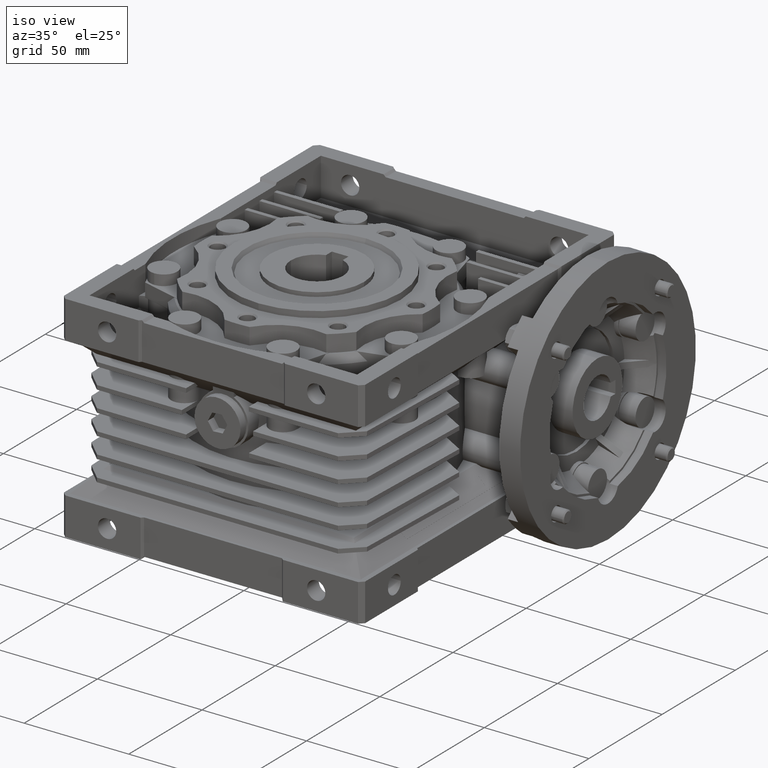
[diagram: clean part render]
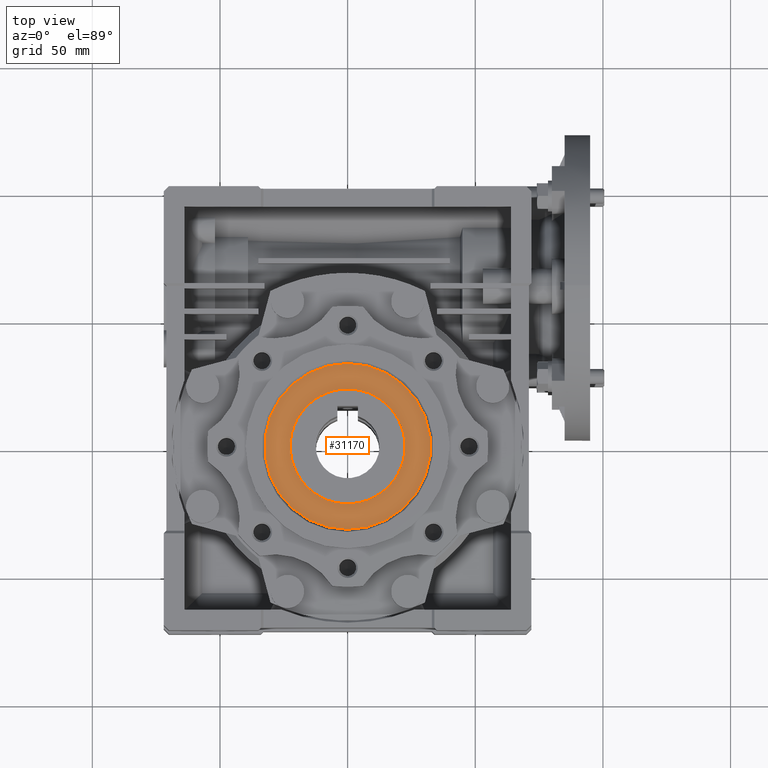
[diagram: tour spotlight — one face highlighted and labeled with its STEP entity id]
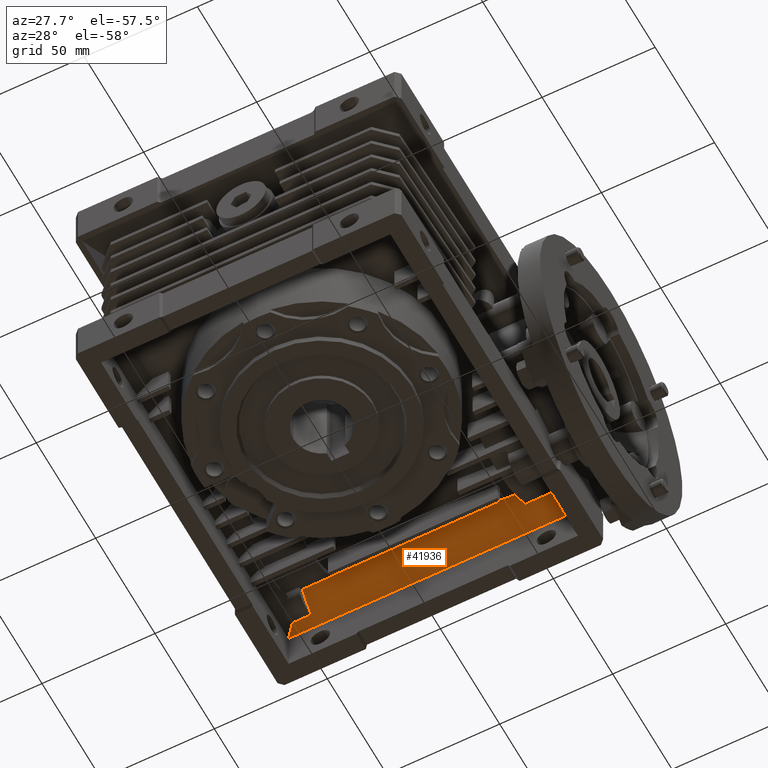
[diagram: tour spotlight — one face highlighted and labeled with its STEP entity id]
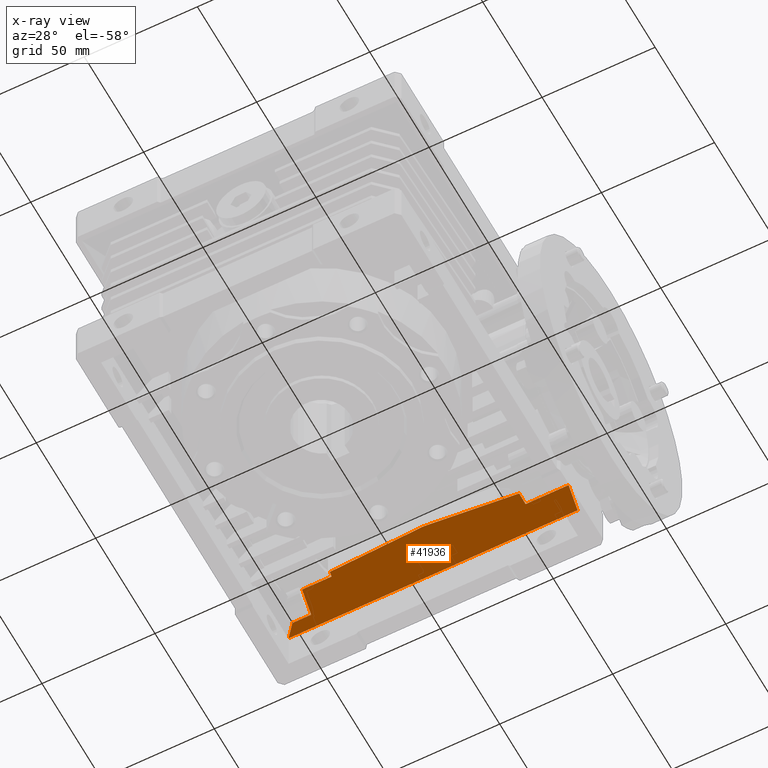
[diagram: x-ray of the same camera — body ghosted, this tour face saturated]
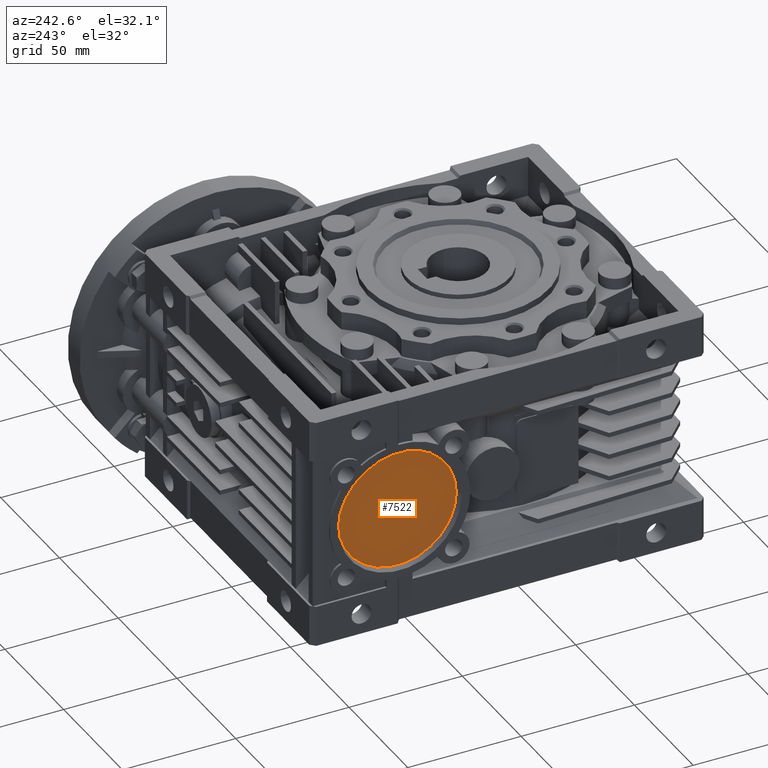
[diagram: tour spotlight — one face highlighted and labeled with its STEP entity id]
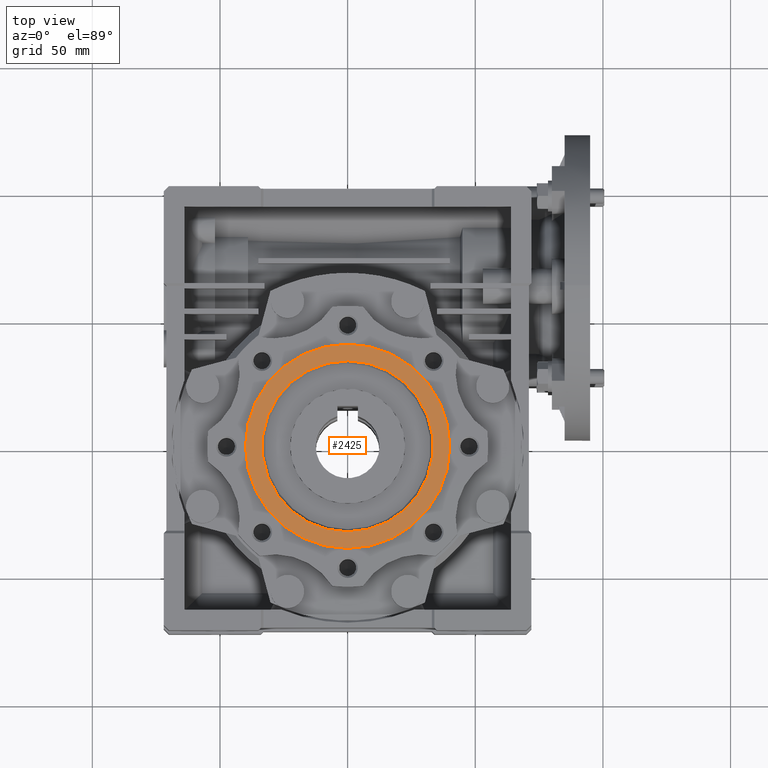
[diagram: tour spotlight — one face highlighted and labeled with its STEP entity id]
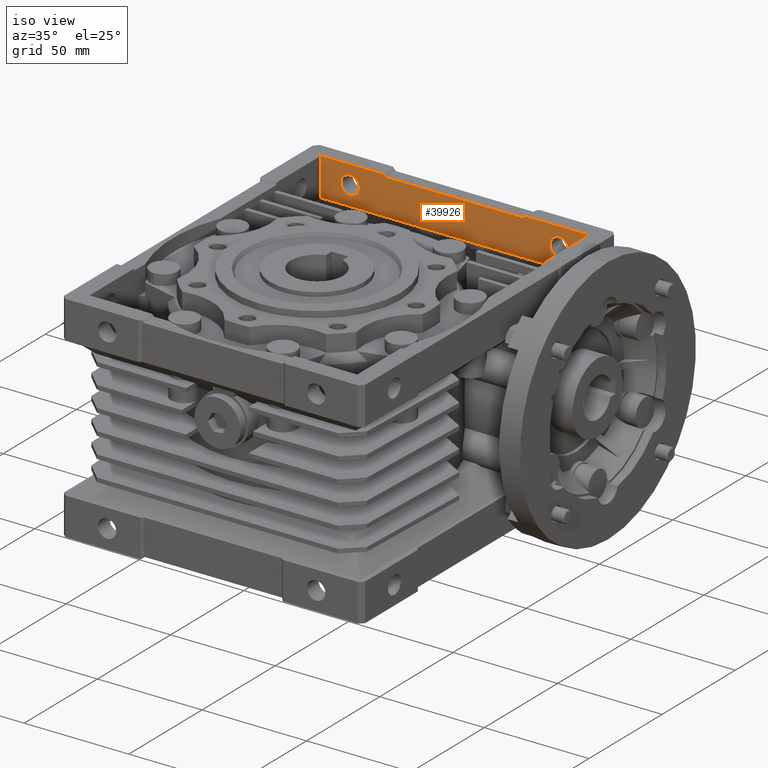
[diagram: tour spotlight — one face highlighted and labeled with its STEP entity id]
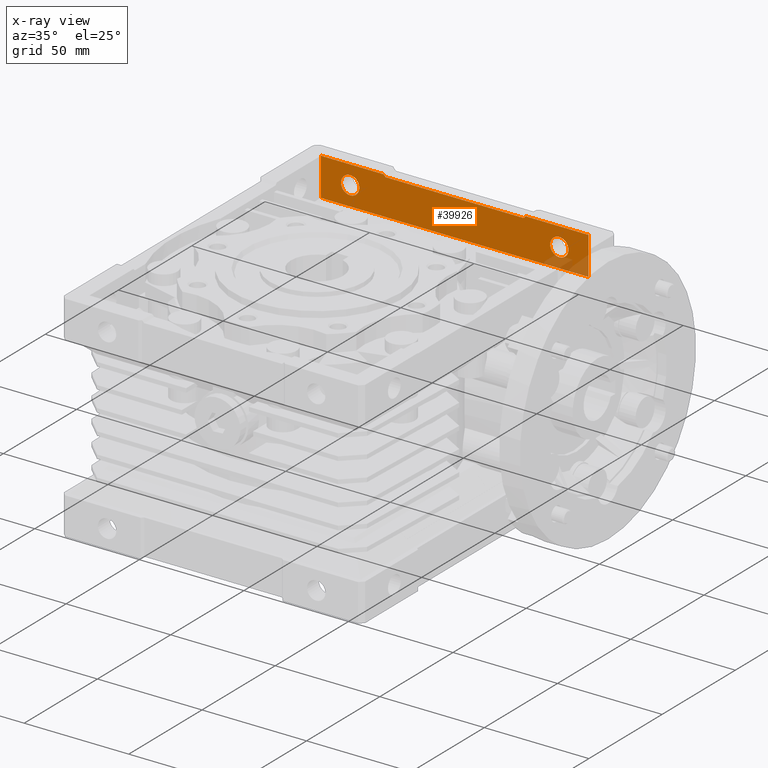
[diagram: x-ray of the same camera — body ghosted, this tour face saturated]
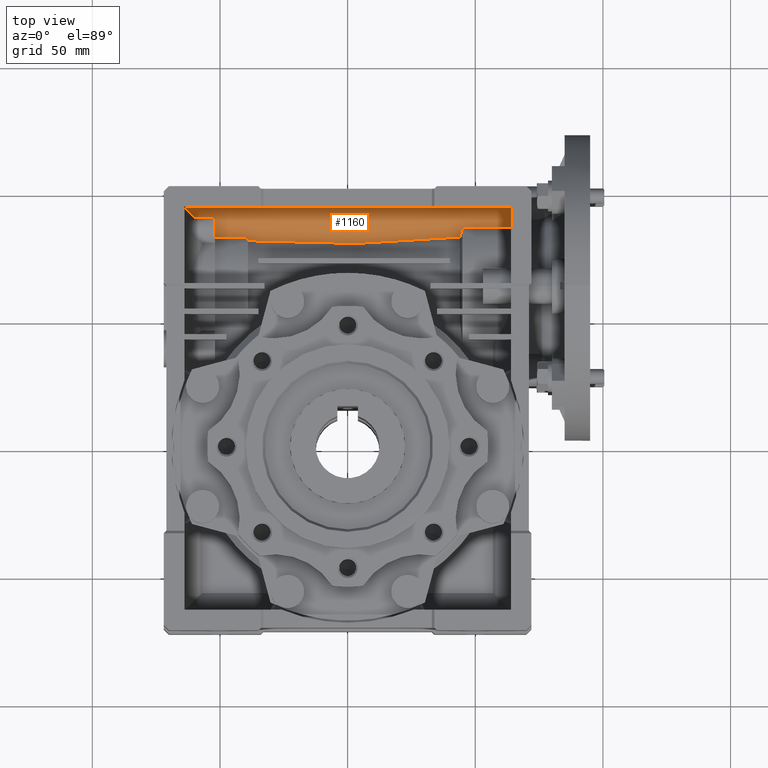
[diagram: tour spotlight — one face highlighted and labeled with its STEP entity id]
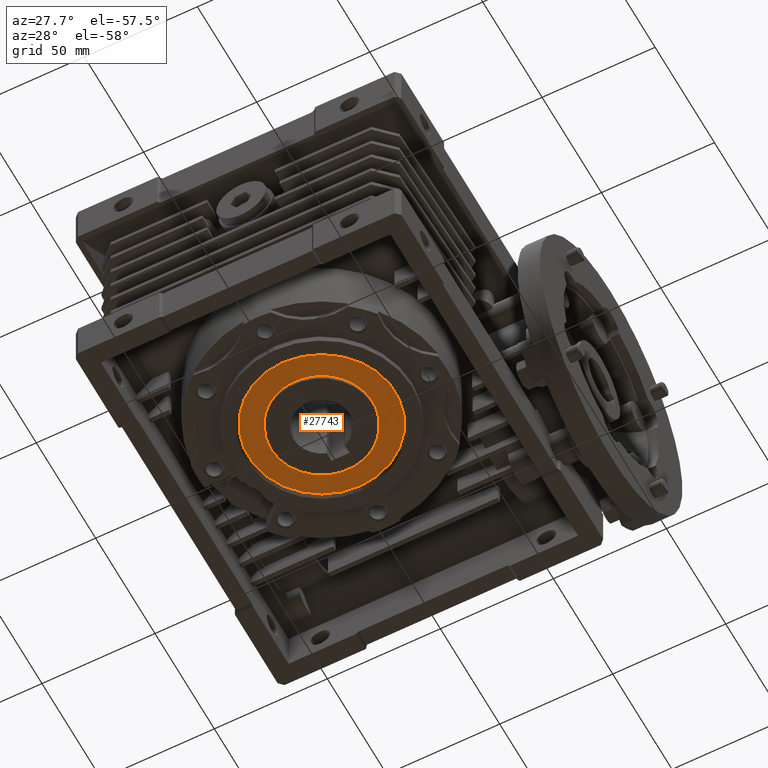
[diagram: tour spotlight — one face highlighted and labeled with its STEP entity id]
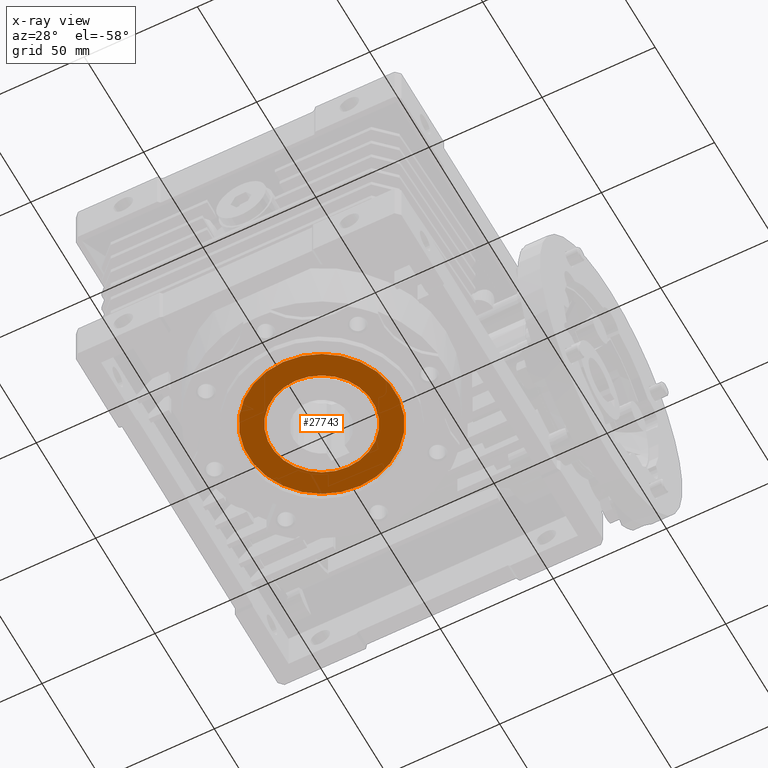
[diagram: x-ray of the same camera — body ghosted, this tour face saturated]
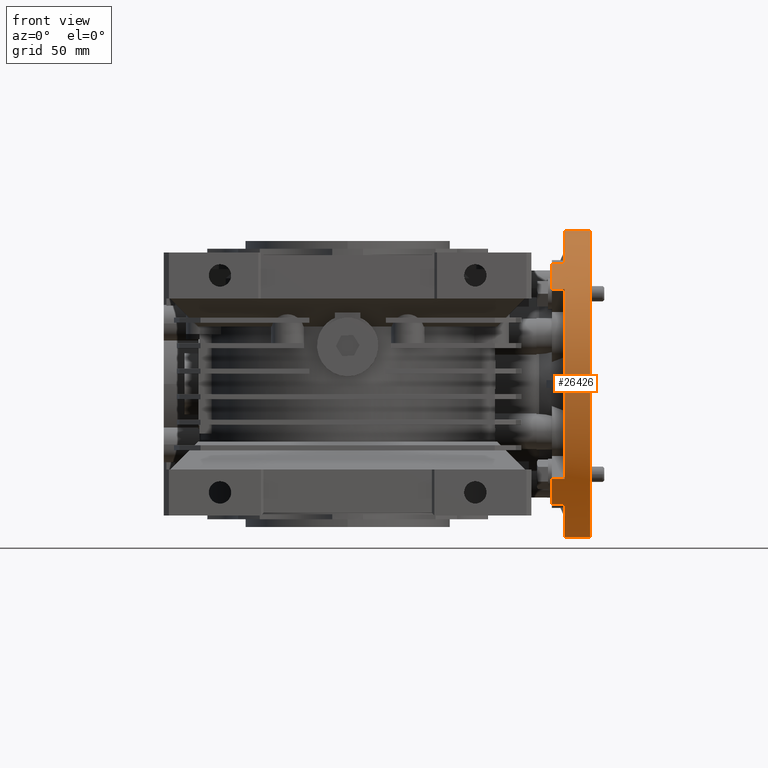
[diagram: tour spotlight — one face highlighted and labeled with its STEP entity id]
A machine part: a face-by-face anatomy tour. The part has 1442 B-rep faces; the first image is the clean iso view, then the 8 largest visible faces are spotlighted one at a time (largest first), each with its STEP entity span.

Face 1 — top view, entity #31170. In plain terms, the highlighted planar face has unit normal (0, 0, 1).
Definition (entity closure, byte-faithful):
#1278 = DIRECTION ( 'NONE',  ( 0.000000000000000000, 0.000000000000000000, 1.000000000000000000 ) ) ;
#1339 = DIRECTION ( 'NONE',  ( 1.000000000000000000, 0.000000000000000000, 0.000000000000000000 ) ) ;
#1346 = CIRCLE ( 'NONE', #11056, 22.50000000000000000 ) ;
#1514 = EDGE_CURVE ( 'NONE', #43814, #25151, #44225, .T. ) ;
#2572 = AXIS2_PLACEMENT_3D ( 'NONE', #26921, #16107, #1339 ) ;
#4056 = CARTESIAN_POINT ( 'NONE',  ( 0.000000000000000000, 22.50000000000000000, 54.00000000000000000 ) ) ;
#4643 = CARTESIAN_POINT ( 'NONE',  ( 0.000000000000000000, 0.000000000000000000, 54.00000000000000000 ) ) ;
#8295 = VERTEX_POINT ( 'NONE', #12940 ) ;
#9101 = CARTESIAN_POINT ( 'NONE',  ( -4.041334437186266200E-15, -32.50000000000000000, 54.00000000000000000 ) ) ;
#9655 = EDGE_LOOP ( 'NONE', ( #42386, #29080 ) ) ;
#11056 = AXIS2_PLACEMENT_3D ( 'NONE', #15392, #30198, #18922 ) ;
#12794 = PLANE ( 'NONE',  #2572 ) ;
#12940 = CARTESIAN_POINT ( 'NONE',  ( -2.755455298081544778E-15, -22.50000000000000000, 54.00000000000000000 ) ) ;
#14831 = CARTESIAN_POINT ( 'NONE',  ( 0.000000000000000000, 32.50000000000000000, 54.00000000000000000 ) ) ;
#15392 = CARTESIAN_POINT ( 'NONE',  ( 0.000000000000000000, 0.000000000000000000, 54.00000000000000000 ) ) ;
#16107 = DIRECTION ( 'NONE',  ( 0.000000000000000000, 0.000000000000000000, 1.000000000000000000 ) ) ;
#16496 = AXIS2_PLACEMENT_3D ( 'NONE', #43987, #1278, #26607 ) ;
#17950 = ORIENTED_EDGE ( 'NONE', *, *, #45183, .T. ) ;
#18922 = DIRECTION ( 'NONE',  ( 0.000000000000000000, 1.000000000000000000, 0.000000000000000000 ) ) ;
#19035 = EDGE_CURVE ( 'NONE', #8295, #24303, #36298, .T. ) ;
#20578 = EDGE_CURVE ( 'NONE', #25151, #43814, #40146, .T. ) ;
#23400 = FACE_OUTER_BOUND ( 'NONE', #9655, .T. ) ;
#24303 = VERTEX_POINT ( 'NONE', #4056 ) ;
#25028 = DIRECTION ( 'NONE',  ( 0.000000000000000000, 1.000000000000000000, 0.000000000000000000 ) ) ;
#25151 = VERTEX_POINT ( 'NONE', #14831 ) ;
#26014 = DIRECTION ( 'NONE',  ( 0.000000000000000000, 0.000000000000000000, 1.000000000000000000 ) ) ;
#26607 = DIRECTION ( 'NONE',  ( 0.000000000000000000, 1.000000000000000000, 0.000000000000000000 ) ) ;
#26921 = CARTESIAN_POINT ( 'NONE',  ( -32.50000000000000000, 0.000000000000000000, 54.00000000000000000 ) ) ;
#27430 = AXIS2_PLACEMENT_3D ( 'NONE', #4643, #26014, #44328 ) ;
#28327 = DIRECTION ( 'NONE',  ( 0.000000000000000000, 0.000000000000000000, -1.000000000000000000 ) ) ;
#29080 = ORIENTED_EDGE ( 'NONE', *, *, #1514, .T. ) ;
#30198 = DIRECTION ( 'NONE',  ( 0.000000000000000000, 0.000000000000000000, -1.000000000000000000 ) ) ;
#31170 = ADVANCED_FACE ( 'NONE', ( #23400, #37254 ), #12794, .T. ) ;
#32227 = ORIENTED_EDGE ( 'NONE', *, *, #19035, .T. ) ;
#36227 = EDGE_LOOP ( 'NONE', ( #17950, #32227 ) ) ;
#36298 = CIRCLE ( 'NONE', #42320, 22.50000000000000000 ) ;
#37254 = FACE_BOUND ( 'NONE', #36227, .T. ) ;
#40146 = CIRCLE ( 'NONE', #27430, 32.50000000000000000 ) ;
#42320 = AXIS2_PLACEMENT_3D ( 'NONE', #42873, #28327, #25028 ) ;
#42386 = ORIENTED_EDGE ( 'NONE', *, *, #20578, .T. ) ;
#42873 = CARTESIAN_POINT ( 'NONE',  ( 0.000000000000000000, 0.000000000000000000, 54.00000000000000000 ) ) ;
#43814 = VERTEX_POINT ( 'NONE', #9101 ) ;
#43987 = CARTESIAN_POINT ( 'NONE',  ( 0.000000000000000000, 0.000000000000000000, 54.00000000000000000 ) ) ;
#44225 = CIRCLE ( 'NONE', #16496, 32.50000000000000000 ) ;
#44328 = DIRECTION ( 'NONE',  ( 0.000000000000000000, 1.000000000000000000, 0.000000000000000000 ) ) ;
#45183 = EDGE_CURVE ( 'NONE', #24303, #8295, #1346, .T. ) ;

Face 2 — auxiliary view, entity #41936. An x-ray twin of the same camera follows (body ghosted, this face saturated) — the face is partly hidden behind the body. In plain terms, the highlighted planar face has unit normal (0, -0.7072, -0.707).
Definition (entity closure, byte-faithful):
#258 = CARTESIAN_POINT ( 'NONE',  ( 64.00000000000000000, 86.11440175275488684, -25.61199780595494957 ) ) ;
#383 = EDGE_LOOP ( 'NONE', ( #20845, #35173, #22791, #42176, #6702, #43087, #4659, #12265, #44978, #31546, #1427 ) ) ;
#1355 = VERTEX_POINT ( 'NONE', #10879 ) ;
#1402 = VERTEX_POINT ( 'NONE', #46130 ) ;
#1427 = ORIENTED_EDGE ( 'NONE', *, *, #16421, .T. ) ;
#1636 = VECTOR ( 'NONE', #31860, 1000.000000000000000 ) ;
#2308 = CARTESIAN_POINT ( 'NONE',  ( -63.87598846298219968, 93.79972079604711155, -33.30000000000000426 ) ) ;
#2548 = CARTESIAN_POINT ( 'NONE',  ( 45.00000000000000000, 86.11440175275488684, -25.61199780595494957 ) ) ;
#3223 = VECTOR ( 'NONE', #44431, 1000.000000000000114 ) ;
#3534 = PLANE ( 'NONE',  #10518 ) ;
#4492 = CARTESIAN_POINT ( 'NONE',  ( -24.91666455388265078, 80.80320074767259086, -20.29894251832494945 ) ) ;
#4659 = ORIENTED_EDGE ( 'NONE', *, *, #44074, .T. ) ;
#5230 = CARTESIAN_POINT ( 'NONE',  ( -60.30301902603810049, 90.22799834309090272, -29.72703056305590152 ) ) ;
#5562 = CARTESIAN_POINT ( 'NONE',  ( 30.44330933938934791, 81.74780550028489756, -21.24387705776054602 ) ) ;
#6433 = VERTEX_POINT ( 'NONE', #11270 ) ;
#6702 = ORIENTED_EDGE ( 'NONE', *, *, #26078, .T. ) ;
#7282 = CARTESIAN_POINT ( 'NONE',  ( -52.00000000000000000, 82.57409283179330828, -22.07045286831105102 ) ) ;
#8149 = CARTESIAN_POINT ( 'NONE',  ( 64.00000000000000000, 60.51134266058539168, 0.000000000000000000 ) ) ;
#8376 = LINE ( 'NONE', #8149, #26756 ) ;
#8599 = CARTESIAN_POINT ( 'NONE',  ( -74.00000000000000000, 93.79972079604711155, -33.30000000000000426 ) ) ;
#10362 = EDGE_CURVE ( 'NONE', #37578, #17298, #8376, .T. ) ;
#10518 = AXIS2_PLACEMENT_3D ( 'NONE', #17856, #28636, #17180 ) ;
#10525 = VECTOR ( 'NONE', #28772, 1000.000000000000000 ) ;
#10879 = CARTESIAN_POINT ( 'NONE',  ( -52.00000000000000000, 90.22799834309090272, -29.72703056305590152 ) ) ;
#11202 = DIRECTION ( 'NONE',  ( 0.000000000000000000, -0.7069833570023729141, 0.7072301838310178779 ) ) ;
#11270 = CARTESIAN_POINT ( 'NONE',  ( -60.30301902603810049, 90.22799834309090272, -29.72703056305590152 ) ) ;
#11279 = CARTESIAN_POINT ( 'NONE',  ( 45.00000000000000000, 86.11440175275488684, -25.61199780595494957 ) ) ;
#12265 = ORIENTED_EDGE ( 'NONE', *, *, #28380, .T. ) ;
#12701 = VECTOR ( 'NONE', #33057, 1000.000000000000000 ) ;
#12744 = CARTESIAN_POINT ( 'NONE',  ( 64.00000000000000000, 93.79972079604711155, -33.30000000000000426 ) ) ;
#13495 = B_SPLINE_CURVE_WITH_KNOTS ( 'NONE', 3,
 ( #2548, #34016, #41284, #40799 ),
 .UNSPECIFIED., .F., .F.,
 ( 4, 4 ),
 ( 3.469446951953614959E-18, 0.005098816313733159182 ),
 .UNSPECIFIED. ) ;
#13847 = FACE_OUTER_BOUND ( 'NONE', #383, .T. ) ;
#14173 = LINE ( 'NONE', #27605, #16588 ) ;
#15132 = DIRECTION ( 'NONE',  ( -1.000000000000000000, 0.000000000000000000, 0.000000000000000000 ) ) ;
#15288 = CARTESIAN_POINT ( 'NONE',  ( -10.83333109784025972, 80.44894323820319926, -19.94456132806920223 ) ) ;
#15517 = VECTOR ( 'NONE', #15132, 1000.000000000000000 ) ;
#15996 = CARTESIAN_POINT ( 'NONE',  ( -39.00000000000000000, 81.15741870622500187, -20.65328414385549749 ) ) ;
#16112 = CARTESIAN_POINT ( 'NONE',  ( 16.84663942194419661, 80.92134752528789932, -20.41713054414525175 ) ) ;
#16421 = EDGE_CURVE ( 'NONE', #1402, #40978, #25264, .T. ) ;
#16588 = VECTOR ( 'NONE', #42409, 1000.000000000000000 ) ;
#16829 = CARTESIAN_POINT ( 'NONE',  ( 44.04000000000000625, 82.57409283179330828, -22.07045286831105102 ) ) ;
#17180 = DIRECTION ( 'NONE',  ( 0.000000000000000000, 0.7069833570023729141, -0.7072301838310177668 ) ) ;
#17298 = VERTEX_POINT ( 'NONE', #258 ) ;
#17856 = CARTESIAN_POINT ( 'NONE',  ( -74.00000000000000000, 60.51134266058539168, 0.000000000000000000 ) ) ;
#20118 = LINE ( 'NONE', #37724, #30386 ) ;
#20845 = ORIENTED_EDGE ( 'NONE', *, *, #23805, .T. ) ;
#22791 = ORIENTED_EDGE ( 'NONE', *, *, #31384, .T. ) ;
#23703 = VERTEX_POINT ( 'NONE', #2308 ) ;
#23805 = EDGE_CURVE ( 'NONE', #40978, #30795, #40044, .T. ) ;
#25264 = LINE ( 'NONE', #42438, #1636 ) ;
#25867 = CARTESIAN_POINT ( 'NONE',  ( 3.250000000000000000, 80.09463887890071021, -19.59013327162370288 ) ) ;
#26078 = EDGE_CURVE ( 'NONE', #23703, #37578, #43840, .T. ) ;
#26756 = VECTOR ( 'NONE', #11202, 1000.000000000000000 ) ;
#26931 = EDGE_CURVE ( 'NONE', #30795, #1355, #39133, .T. ) ;
#27071 = LINE ( 'NONE', #5230, #3223 ) ;
#27598 = DIRECTION ( 'NONE',  ( -1.000000000000000000, 0.000000000000000000, 0.000000000000000000 ) ) ;
#27605 = CARTESIAN_POINT ( 'NONE',  ( -74.00000000000000000, 90.22799834309090272, -29.72703056305590152 ) ) ;
#27663 = CARTESIAN_POINT ( 'NONE',  ( 3.250000000000000000, 80.09463887890071021, -19.59013327162370288 ) ) ;
#28380 = EDGE_CURVE ( 'NONE', #44829, #40048, #13495, .T. ) ;
#28636 = DIRECTION ( 'NONE',  ( 0.000000000000000000, -0.7072301838310178779, -0.7069833570023730251 ) ) ;
#28772 = DIRECTION ( 'NONE',  ( 0.000000000000000000, 0.7069833570023729141, -0.7072301838310178779 ) ) ;
#29953 = EDGE_CURVE ( 'NONE', #6433, #23703, #27071, .T. ) ;
#30386 = VECTOR ( 'NONE', #27598, 1000.000000000000000 ) ;
#30795 = VERTEX_POINT ( 'NONE', #7282 ) ;
#31050 = CARTESIAN_POINT ( 'NONE',  ( -39.00000000000000000, 82.57409283179330828, -22.07045286831105102 ) ) ;
#31278 = B_SPLINE_CURVE_WITH_KNOTS ( 'NONE', 3,
 ( #33993, #16112, #5562, #16829 ),
 .UNSPECIFIED., .F., .F.,
 ( 4, 4 ),
 ( 4.336808689942019662E-19, 0.04094049068106329903 ),
 .UNSPECIFIED. ) ;
#31384 = EDGE_CURVE ( 'NONE', #1355, #6433, #14173, .T. ) ;
#31546 = ORIENTED_EDGE ( 'NONE', *, *, #35341, .F. ) ;
#31860 = DIRECTION ( 'NONE',  ( 0.000000000000000000, 0.7069833570023729141, -0.7072301838310178779 ) ) ;
#32784 = CARTESIAN_POINT ( 'NONE',  ( -74.00000000000000000, 82.57409283179330828, -22.07045286831105102 ) ) ;
#33057 = DIRECTION ( 'NONE',  ( 1.000000000000000000, 0.000000000000000000, 0.000000000000000000 ) ) ;
#33993 = CARTESIAN_POINT ( 'NONE',  ( 3.250000000000000000, 80.09463887890071021, -19.59013327162370288 ) ) ;
#34016 = CARTESIAN_POINT ( 'NONE',  ( 44.67993171367660210, 84.93430803524759654, -24.43149208611844969 ) ) ;
#35173 = ORIENTED_EDGE ( 'NONE', *, *, #26931, .T. ) ;
#35341 = EDGE_CURVE ( 'NONE', #1402, #43769, #37316, .T. ) ;
#37316 = B_SPLINE_CURVE_WITH_KNOTS ( 'NONE', 3,
 ( #15996, #4492, #15288, #25867 ),
 .UNSPECIFIED., .F., .F.,
 ( 4, 4 ),
 ( 0.000000000000000000, 0.04227673462719764436 ),
 .UNSPECIFIED. ) ;
#37578 = VERTEX_POINT ( 'NONE', #12744 ) ;
#37724 = CARTESIAN_POINT ( 'NONE',  ( -74.00000000000000000, 86.11440175275488684, -25.61199780595494957 ) ) ;
#39133 = LINE ( 'NONE', #43108, #10525 ) ;
#40044 = LINE ( 'NONE', #32784, #15517 ) ;
#40048 = VERTEX_POINT ( 'NONE', #42644 ) ;
#40799 = CARTESIAN_POINT ( 'NONE',  ( 44.04000000000000625, 82.57409283179330828, -22.07045286831105102 ) ) ;
#40978 = VERTEX_POINT ( 'NONE', #31050 ) ;
#41284 = CARTESIAN_POINT ( 'NONE',  ( 44.35992013768530029, 83.75420662811080774, -23.25097867396774731 ) ) ;
#41936 = ADVANCED_FACE ( 'NONE', ( #13847 ), #3534, .T. ) ;
#42176 = ORIENTED_EDGE ( 'NONE', *, *, #29953, .T. ) ;
#42409 = DIRECTION ( 'NONE',  ( -1.000000000000000000, 0.000000000000000000, 0.000000000000000000 ) ) ;
#42438 = CARTESIAN_POINT ( 'NONE',  ( -39.00000000000000000, 60.51134266058539168, 0.000000000000000000 ) ) ;
#42644 = CARTESIAN_POINT ( 'NONE',  ( 44.04000000000000625, 82.57409283179330828, -22.07045286831105102 ) ) ;
#42859 = EDGE_CURVE ( 'NONE', #43769, #40048, #31278, .T. ) ;
#43087 = ORIENTED_EDGE ( 'NONE', *, *, #10362, .T. ) ;
#43108 = CARTESIAN_POINT ( 'NONE',  ( -52.00000000000000000, 60.51134266058539168, 0.000000000000000000 ) ) ;
#43769 = VERTEX_POINT ( 'NONE', #27663 ) ;
#43840 = LINE ( 'NONE', #8599, #12701 ) ;
#44074 = EDGE_CURVE ( 'NONE', #17298, #44829, #20118, .T. ) ;
#44431 = DIRECTION ( 'NONE',  ( -0.5774174352200348581, 0.5772159136820739223, -0.5774174352200368565 ) ) ;
#44829 = VERTEX_POINT ( 'NONE', #11279 ) ;
#44978 = ORIENTED_EDGE ( 'NONE', *, *, #42859, .F. ) ;
#46130 = CARTESIAN_POINT ( 'NONE',  ( -39.00000000000000000, 81.15741870622500187, -20.65328414385549749 ) ) ;

Face 3 — auxiliary view, entity #7522. In plain terms, the highlighted planar face has unit normal (-1, 0, 0).
Definition (entity closure, byte-faithful):
#1429 = CARTESIAN_POINT ( 'NONE',  ( -69.75000000000000000, 37.00000000000000000, 0.000000000000000000 ) ) ;
#3564 = EDGE_CURVE ( 'NONE', #44142, #13554, #38525, .T. ) ;
#5710 = AXIS2_PLACEMENT_3D ( 'NONE', #1429, #25603, #22316 ) ;
#6051 = CARTESIAN_POINT ( 'NONE',  ( -69.75000000000000000, 63.00000000000000000, 0.000000000000000000 ) ) ;
#7522 = ADVANCED_FACE ( 'NONE', ( #19018 ), #29346, .T. ) ;
#8464 = AXIS2_PLACEMENT_3D ( 'NONE', #37245, #40298, #19159 ) ;
#12818 = AXIS2_PLACEMENT_3D ( 'NONE', #6051, #20391, #34720 ) ;
#13554 = VERTEX_POINT ( 'NONE', #46345 ) ;
#16363 = EDGE_CURVE ( 'NONE', #13554, #44142, #33091, .T. ) ;
#19018 = FACE_OUTER_BOUND ( 'NONE', #23554, .T. ) ;
#19159 = DIRECTION ( 'NONE',  ( 0.000000000000000000, 1.000000000000000000, 0.000000000000000000 ) ) ;
#20391 = DIRECTION ( 'NONE',  ( -1.000000000000000000, 0.000000000000000000, 0.000000000000000000 ) ) ;
#22316 = DIRECTION ( 'NONE',  ( 0.000000000000000000, 0.000000000000000000, 1.000000000000000000 ) ) ;
#23342 = ORIENTED_EDGE ( 'NONE', *, *, #3564, .T. ) ;
#23554 = EDGE_LOOP ( 'NONE', ( #23342, #32924 ) ) ;
#25603 = DIRECTION ( 'NONE',  ( -1.000000000000000000, 0.000000000000000000, 0.000000000000000000 ) ) ;
#29346 = PLANE ( 'NONE',  #5710 ) ;
#32924 = ORIENTED_EDGE ( 'NONE', *, *, #16363, .T. ) ;
#33091 = CIRCLE ( 'NONE', #12818, 25.99999999999999645 ) ;
#34720 = DIRECTION ( 'NONE',  ( 0.000000000000000000, 1.000000000000000000, 0.000000000000000000 ) ) ;
#37245 = CARTESIAN_POINT ( 'NONE',  ( -69.75000000000000000, 63.00000000000000000, 0.000000000000000000 ) ) ;
#37485 = CARTESIAN_POINT ( 'NONE',  ( -69.75000000000000000, 89.00000000000000000, 0.000000000000000000 ) ) ;
#38525 = CIRCLE ( 'NONE', #8464, 25.99999999999999645 ) ;
#40298 = DIRECTION ( 'NONE',  ( -1.000000000000000000, 0.000000000000000000, 0.000000000000000000 ) ) ;
#44142 = VERTEX_POINT ( 'NONE', #37485 ) ;
#46345 = CARTESIAN_POINT ( 'NONE',  ( -69.75000000000000000, 37.00000000000000711, -3.260622102729828053E-15 ) ) ;

Face 4 — top view, entity #2425. In plain terms, the highlighted planar face has unit normal (0, 0, -1).
Definition (entity closure, byte-faithful):
#64 = AXIS2_PLACEMENT_3D ( 'NONE', #45143, #40932, #12941 ) ;
#776 = DIRECTION ( 'NONE',  ( 0.000000000000000000, 1.000000000000000000, 0.000000000000000000 ) ) ;
#2425 = ADVANCED_FACE ( 'NONE', ( #45376, #44918 ), #41637, .F. ) ;
#2582 = VERTEX_POINT ( 'NONE', #18285 ) ;
#4353 = CARTESIAN_POINT ( 'NONE',  ( 0.000000000000000000, 0.000000000000000000, 56.00000000000000000 ) ) ;
#5146 = CARTESIAN_POINT ( 'NONE',  ( -4.898587196589413026E-15, -40.00000000000000000, 56.00000000000000000 ) ) ;
#5839 = AXIS2_PLACEMENT_3D ( 'NONE', #34340, #26801, #23753 ) ;
#8028 = CARTESIAN_POINT ( 'NONE',  ( 0.000000000000000000, 0.000000000000000000, 56.00000000000000000 ) ) ;
#8092 = DIRECTION ( 'NONE',  ( 0.000000000000000000, 1.000000000000000000, 0.000000000000000000 ) ) ;
#10318 = ORIENTED_EDGE ( 'NONE', *, *, #34565, .F. ) ;
#11267 = AXIS2_PLACEMENT_3D ( 'NONE', #8028, #29171, #776 ) ;
#11568 = VERTEX_POINT ( 'NONE', #33543 ) ;
#12941 = DIRECTION ( 'NONE',  ( 0.000000000000000000, -1.000000000000000000, 0.000000000000000000 ) ) ;
#14529 = EDGE_CURVE ( 'NONE', #18829, #2582, #32293, .T. ) ;
#15941 = ORIENTED_EDGE ( 'NONE', *, *, #24684, .T. ) ;
#16366 = CIRCLE ( 'NONE', #42604, 33.50000000000000000 ) ;
#17692 = CARTESIAN_POINT ( 'NONE',  ( 0.000000000000000000, 0.000000000000000000, 56.00000000000000000 ) ) ;
#18285 = CARTESIAN_POINT ( 'NONE',  ( -4.102566777143633774E-15, -33.50000000000000000, 56.00000000000000000 ) ) ;
#18829 = VERTEX_POINT ( 'NONE', #43163 ) ;
#21920 = AXIS2_PLACEMENT_3D ( 'NONE', #17692, #32016, #46323 ) ;
#23753 = DIRECTION ( 'NONE',  ( 0.000000000000000000, 1.000000000000000000, 0.000000000000000000 ) ) ;
#24159 = ORIENTED_EDGE ( 'NONE', *, *, #14529, .T. ) ;
#24684 = EDGE_CURVE ( 'NONE', #2582, #18829, #16366, .T. ) ;
#25855 = EDGE_LOOP ( 'NONE', ( #24159, #15941 ) ) ;
#26801 = DIRECTION ( 'NONE',  ( 0.000000000000000000, 0.000000000000000000, -1.000000000000000000 ) ) ;
#26843 = CIRCLE ( 'NONE', #5839, 40.00000000000000000 ) ;
#29171 = DIRECTION ( 'NONE',  ( 0.000000000000000000, 0.000000000000000000, -1.000000000000000000 ) ) ;
#32016 = DIRECTION ( 'NONE',  ( 0.000000000000000000, 0.000000000000000000, -1.000000000000000000 ) ) ;
#32293 = CIRCLE ( 'NONE', #11267, 33.50000000000000000 ) ;
#32337 = EDGE_LOOP ( 'NONE', ( #10318, #42368 ) ) ;
#33543 = CARTESIAN_POINT ( 'NONE',  ( 0.000000000000000000, 40.00000000000000000, 56.00000000000000000 ) ) ;
#34340 = CARTESIAN_POINT ( 'NONE',  ( 0.000000000000000000, 0.000000000000000000, 56.00000000000000000 ) ) ;
#34565 = EDGE_CURVE ( 'NONE', #11568, #39494, #42195, .T. ) ;
#39494 = VERTEX_POINT ( 'NONE', #5146 ) ;
#40282 = DIRECTION ( 'NONE',  ( 0.000000000000000000, 0.000000000000000000, -1.000000000000000000 ) ) ;
#40932 = DIRECTION ( 'NONE',  ( 0.000000000000000000, 0.000000000000000000, -1.000000000000000000 ) ) ;
#41637 = PLANE ( 'NONE',  #64 ) ;
#42195 = CIRCLE ( 'NONE', #21920, 40.00000000000000000 ) ;
#42368 = ORIENTED_EDGE ( 'NONE', *, *, #44931, .F. ) ;
#42604 = AXIS2_PLACEMENT_3D ( 'NONE', #4353, #40282, #8092 ) ;
#43163 = CARTESIAN_POINT ( 'NONE',  ( 0.000000000000000000, 33.50000000000000000, 56.00000000000000000 ) ) ;
#44918 = FACE_BOUND ( 'NONE', #25855, .T. ) ;
#44931 = EDGE_CURVE ( 'NONE', #39494, #11568, #26843, .T. ) ;
#45143 = CARTESIAN_POINT ( 'NONE',  ( 0.000000000000000000, 0.000000000000000000, 56.00000000000000000 ) ) ;
#45376 = FACE_OUTER_BOUND ( 'NONE', #32337, .T. ) ;
#46323 = DIRECTION ( 'NONE',  ( 0.000000000000000000, 1.000000000000000000, 0.000000000000000000 ) ) ;

Face 5 — iso view, entity #39926. An x-ray twin of the same camera follows (body ghosted, this face saturated) — the face is partly hidden behind the body. In plain terms, the highlighted planar face has unit normal (0, -1, 0).
Definition (entity closure, byte-faithful):
#2476 = DIRECTION ( 'NONE',  ( 0.000000000000000000, 1.000000000000000000, 0.000000000000000000 ) ) ;
#2480 = CIRCLE ( 'NONE', #3912, 4.389999999999997904 ) ;
#2589 = VECTOR ( 'NONE', #32367, 1000.000000000000000 ) ;
#2764 = VERTEX_POINT ( 'NONE', #22548 ) ;
#2875 = CARTESIAN_POINT ( 'NONE',  ( 64.00000000000000000, 94.00000000000000000, -33.30000000000000426 ) ) ;
#3008 = DIRECTION ( 'NONE',  ( 0.7071067811865474617, 0.000000000000000000, 0.7071067811865474617 ) ) ;
#3098 = DIRECTION ( 'NONE',  ( 0.000000000000000000, 1.000000000000000000, 0.000000000000000000 ) ) ;
#3133 = ORIENTED_EDGE ( 'NONE', *, *, #34526, .T. ) ;
#3367 = DIRECTION ( 'NONE',  ( 0.000000000000000000, 1.000000000000000000, 0.000000000000000000 ) ) ;
#3912 = AXIS2_PLACEMENT_3D ( 'NONE', #35537, #3367, #6880 ) ;
#4498 = EDGE_CURVE ( 'NONE', #5944, #18351, #10775, .T. ) ;
#4776 = ORIENTED_EDGE ( 'NONE', *, *, #17163, .F. ) ;
#4883 = VECTOR ( 'NONE', #5637, 1000.000000000000000 ) ;
#4950 = CARTESIAN_POINT ( 'NONE',  ( -64.00000000000000000, 94.00000000000000000, 33.30000000000000426 ) ) ;
#5637 = DIRECTION ( 'NONE',  ( -1.000000000000000000, 0.000000000000000000, 0.000000000000000000 ) ) ;
#5944 = VERTEX_POINT ( 'NONE', #31656 ) ;
#6164 = LINE ( 'NONE', #13637, #21881 ) ;
#6880 = DIRECTION ( 'NONE',  ( 0.000000000000000000, 0.000000000000000000, -1.000000000000000000 ) ) ;
#7456 = ORIENTED_EDGE ( 'NONE', *, *, #14479, .T. ) ;
#9040 = CARTESIAN_POINT ( 'NONE',  ( -50.00000000000000000, 94.00000000000000000, 46.89000000000000057 ) ) ;
#9598 = VERTEX_POINT ( 'NONE', #9040 ) ;
#10638 = VECTOR ( 'NONE', #18350, 1000.000000000000000 ) ;
#10775 = CIRCLE ( 'NONE', #37044, 4.389999999999997904 ) ;
#11630 = ORIENTED_EDGE ( 'NONE', *, *, #20251, .T. ) ;
#11728 = LINE ( 'NONE', #4950, #10638 ) ;
#11869 = DIRECTION ( 'NONE',  ( 0.000000000000000000, 0.000000000000000000, -1.000000000000000000 ) ) ;
#13280 = VECTOR ( 'NONE', #3008, 1000.000000000000114 ) ;
#13637 = CARTESIAN_POINT ( 'NONE',  ( -64.00000000000000000, 94.00000000000000000, 33.30000000000000426 ) ) ;
#14245 = EDGE_CURVE ( 'NONE', #29028, #28090, #22651, .T. ) ;
#14479 = EDGE_CURVE ( 'NONE', #26602, #24623, #18157, .T. ) ;
#14680 = ORIENTED_EDGE ( 'NONE', *, *, #15965, .T. ) ;
#14848 = VECTOR ( 'NONE', #25364, 1000.000000000000114 ) ;
#15599 = CARTESIAN_POINT ( 'NONE',  ( 0.000000000000000000, 94.00000000000000000, 51.50000000000000000 ) ) ;
#15947 = CARTESIAN_POINT ( 'NONE',  ( -64.00000000000000000, 94.00000000000000000, 51.50000000000000000 ) ) ;
#15965 = EDGE_CURVE ( 'NONE', #2764, #17455, #11728, .T. ) ;
#16122 = CIRCLE ( 'NONE', #21393, 4.389999999999997904 ) ;
#16133 = ORIENTED_EDGE ( 'NONE', *, *, #34216, .T. ) ;
#17152 = LINE ( 'NONE', #42273, #4883 ) ;
#17163 = EDGE_CURVE ( 'NONE', #2764, #28090, #6164, .T. ) ;
#17455 = VERTEX_POINT ( 'NONE', #33830 ) ;
#17651 = DIRECTION ( 'NONE',  ( 0.000000000000000000, 0.000000000000000000, -1.000000000000000000 ) ) ;
#18157 = LINE ( 'NONE', #21907, #30828 ) ;
#18350 = DIRECTION ( 'NONE',  ( 1.000000000000000000, 0.000000000000000000, 0.000000000000000000 ) ) ;
#18351 = VERTEX_POINT ( 'NONE', #32935 ) ;
#18621 = VERTEX_POINT ( 'NONE', #45120 ) ;
#18639 = EDGE_CURVE ( 'NONE', #17455, #26602, #27735, .T. ) ;
#18736 = ORIENTED_EDGE ( 'NONE', *, *, #41176, .T. ) ;
#18763 = VECTOR ( 'NONE', #34199, 1000.000000000000000 ) ;
#19227 = VERTEX_POINT ( 'NONE', #44479 ) ;
#19668 = AXIS2_PLACEMENT_3D ( 'NONE', #24234, #3098, #17651 ) ;
#20251 = EDGE_CURVE ( 'NONE', #19227, #18621, #17152, .T. ) ;
#20635 = LINE ( 'NONE', #45729, #13280 ) ;
#21393 = AXIS2_PLACEMENT_3D ( 'NONE', #22686, #21994, #36327 ) ;
#21881 = VECTOR ( 'NONE', #42325, 1000.000000000000000 ) ;
#21907 = CARTESIAN_POINT ( 'NONE',  ( -64.00000000000000000, 94.00000000000000000, 51.50000000000000000 ) ) ;
#21994 = DIRECTION ( 'NONE',  ( 0.000000000000000000, 1.000000000000000000, 0.000000000000000000 ) ) ;
#22548 = CARTESIAN_POINT ( 'NONE',  ( -64.00000000000000000, 94.00000000000000000, 33.30000000000000426 ) ) ;
#22651 = LINE ( 'NONE', #15599, #18763 ) ;
#22686 = CARTESIAN_POINT ( 'NONE',  ( 50.00000000000000000, 94.00000000000000000, 42.50000000000000000 ) ) ;
#23770 = EDGE_CURVE ( 'NONE', #19227, #24623, #20635, .T. ) ;
#23837 = CARTESIAN_POINT ( 'NONE',  ( 50.00000000000000000, 94.00000000000000000, 42.50000000000000000 ) ) ;
#24234 = CARTESIAN_POINT ( 'NONE',  ( -50.00000000000000000, 94.00000000000000000, 42.50000000000000000 ) ) ;
#24623 = VERTEX_POINT ( 'NONE', #29458 ) ;
#25364 = DIRECTION ( 'NONE',  ( -0.7071067811865474617, 0.000000000000000000, 0.7071067811865474617 ) ) ;
#25399 = CARTESIAN_POINT ( 'NONE',  ( -50.00000000000000000, 94.00000000000000000, 38.11000000000000654 ) ) ;
#25426 = DIRECTION ( 'NONE',  ( -1.000000000000000000, 0.000000000000000000, 0.000000000000000000 ) ) ;
#26368 = CIRCLE ( 'NONE', #19668, 4.389999999999997904 ) ;
#26602 = VERTEX_POINT ( 'NONE', #37040 ) ;
#26696 = FACE_BOUND ( 'NONE', #37782, .T. ) ;
#27735 = LINE ( 'NONE', #2875, #2589 ) ;
#27832 = ORIENTED_EDGE ( 'NONE', *, *, #18639, .T. ) ;
#28090 = VERTEX_POINT ( 'NONE', #15947 ) ;
#28762 = EDGE_LOOP ( 'NONE', ( #32781, #30388 ) ) ;
#29028 = VERTEX_POINT ( 'NONE', #34135 ) ;
#29111 = CARTESIAN_POINT ( 'NONE',  ( -33.00000000000000000, 94.00000000000000000, 50.50000000000000000 ) ) ;
#29458 = CARTESIAN_POINT ( 'NONE',  ( 34.00000000000000000, 94.00000000000000000, 51.50000000000000000 ) ) ;
#30388 = ORIENTED_EDGE ( 'NONE', *, *, #4498, .T. ) ;
#30467 = FACE_OUTER_BOUND ( 'NONE', #44532, .T. ) ;
#30828 = VECTOR ( 'NONE', #25426, 1000.000000000000000 ) ;
#30897 = ORIENTED_EDGE ( 'NONE', *, *, #23770, .F. ) ;
#31656 = CARTESIAN_POINT ( 'NONE',  ( 50.00000000000000000, 94.00000000000000000, 46.89000000000000057 ) ) ;
#32367 = DIRECTION ( 'NONE',  ( 0.000000000000000000, 0.000000000000000000, 1.000000000000000000 ) ) ;
#32781 = ORIENTED_EDGE ( 'NONE', *, *, #37012, .T. ) ;
#32935 = CARTESIAN_POINT ( 'NONE',  ( 50.00000000000000000, 94.00000000000000000, 38.11000000000000654 ) ) ;
#33830 = CARTESIAN_POINT ( 'NONE',  ( 64.00000000000000000, 94.00000000000000000, 33.30000000000000426 ) ) ;
#34135 = CARTESIAN_POINT ( 'NONE',  ( -34.00000000000000000, 94.00000000000000000, 51.50000000000000000 ) ) ;
#34199 = DIRECTION ( 'NONE',  ( -1.000000000000000000, 0.000000000000000000, 0.000000000000000000 ) ) ;
#34216 = EDGE_CURVE ( 'NONE', #9598, #45969, #26368, .T. ) ;
#34526 = EDGE_CURVE ( 'NONE', #45969, #9598, #2480, .T. ) ;
#35537 = CARTESIAN_POINT ( 'NONE',  ( -50.00000000000000000, 94.00000000000000000, 42.50000000000000000 ) ) ;
#36316 = ORIENTED_EDGE ( 'NONE', *, *, #14245, .T. ) ;
#36327 = DIRECTION ( 'NONE',  ( 0.000000000000000000, 0.000000000000000000, -1.000000000000000000 ) ) ;
#37012 = EDGE_CURVE ( 'NONE', #18351, #5944, #16122, .T. ) ;
#37040 = CARTESIAN_POINT ( 'NONE',  ( 64.00000000000000000, 94.00000000000000000, 51.50000000000000000 ) ) ;
#37044 = AXIS2_PLACEMENT_3D ( 'NONE', #23837, #2476, #41919 ) ;
#37782 = EDGE_LOOP ( 'NONE', ( #3133, #16133 ) ) ;
#39232 = LINE ( 'NONE', #29111, #14848 ) ;
#39926 = ADVANCED_FACE ( 'NONE', ( #30467, #26696, #44059 ), #40783, .T. ) ;
#40783 = PLANE ( 'NONE',  #45565 ) ;
#41176 = EDGE_CURVE ( 'NONE', #18621, #29028, #39232, .T. ) ;
#41919 = DIRECTION ( 'NONE',  ( 0.000000000000000000, 0.000000000000000000, -1.000000000000000000 ) ) ;
#42273 = CARTESIAN_POINT ( 'NONE',  ( -64.00000000000000000, 94.00000000000000000, 50.50000000000000000 ) ) ;
#42325 = DIRECTION ( 'NONE',  ( 0.000000000000000000, 0.000000000000000000, 1.000000000000000000 ) ) ;
#44059 = FACE_BOUND ( 'NONE', #28762, .T. ) ;
#44479 = CARTESIAN_POINT ( 'NONE',  ( 33.00000000000000000, 94.00000000000000000, 50.50000000000000000 ) ) ;
#44532 = EDGE_LOOP ( 'NONE', ( #14680, #27832, #7456, #30897, #11630, #18736, #36316, #4776 ) ) ;
#44536 = DIRECTION ( 'NONE',  ( 0.000000000000000000, -1.000000000000000000, 0.000000000000000000 ) ) ;
#44781 = CARTESIAN_POINT ( 'NONE',  ( -64.00000000000000000, 94.00000000000000000, 33.30000000000000426 ) ) ;
#45120 = CARTESIAN_POINT ( 'NONE',  ( -33.00000000000000000, 94.00000000000000000, 50.50000000000000000 ) ) ;
#45565 = AXIS2_PLACEMENT_3D ( 'NONE', #44781, #44536, #11869 ) ;
#45729 = CARTESIAN_POINT ( 'NONE',  ( 34.00000000000000000, 94.00000000000000000, 51.50000000000000000 ) ) ;
#45969 = VERTEX_POINT ( 'NONE', #25399 ) ;

Face 6 — top view, entity #1160. In plain terms, the highlighted planar face has unit normal (0, -0.7072, 0.707).
Definition (entity closure, byte-faithful):
#399 = EDGE_CURVE ( 'NONE', #18636, #38294, #19687, .T. ) ;
#520 = EDGE_CURVE ( 'NONE', #917, #7376, #5184, .T. ) ;
#549 = VERTEX_POINT ( 'NONE', #36882 ) ;
#904 = CARTESIAN_POINT ( 'NONE',  ( 1.387778780781449935E-14, 93.79972079604711155, 33.30000000000000426 ) ) ;
#917 = VERTEX_POINT ( 'NONE', #40542 ) ;
#1160 = ADVANCED_FACE ( 'NONE', ( #34631 ), #45167, .T. ) ;
#2038 = CARTESIAN_POINT ( 'NONE',  ( 44.04000000000000625, 82.57409283179330828, 22.07045286831100128 ) ) ;
#2062 = DIRECTION ( 'NONE',  ( 0.000000000000000000, -0.7069833570023729141, -0.7072301838310178779 ) ) ;
#3076 = LINE ( 'NONE', #31714, #19804 ) ;
#3104 = DIRECTION ( 'NONE',  ( 1.000000000000000000, 0.000000000000000000, 0.000000000000000000 ) ) ;
#4143 = EDGE_CURVE ( 'NONE', #5449, #38294, #3076, .T. ) ;
#4606 = VERTEX_POINT ( 'NONE', #28706 ) ;
#5184 = LINE ( 'NONE', #19283, #16408 ) ;
#5449 = VERTEX_POINT ( 'NONE', #13052 ) ;
#5775 = CARTESIAN_POINT ( 'NONE',  ( 45.00000000000000000, 86.11440175275488684, 25.61199780595489983 ) ) ;
#6107 = CARTESIAN_POINT ( 'NONE',  ( 16.84663942194415043, 80.92134752528789932, 20.41713054414525175 ) ) ;
#7179 = CARTESIAN_POINT ( 'NONE',  ( -63.74998203457479917, 93.79972079604719681, 33.30000000000000426 ) ) ;
#7376 = VERTEX_POINT ( 'NONE', #38588 ) ;
#7510 = CARTESIAN_POINT ( 'NONE',  ( 64.00000000000000000, 86.11440175275488684, 25.61199780595489983 ) ) ;
#7532 = CARTESIAN_POINT ( 'NONE',  ( -39.00000000000000000, 81.15741870622500187, 20.65328414385544775 ) ) ;
#9571 = EDGE_CURVE ( 'NONE', #4606, #917, #21071, .T. ) ;
#10583 = VERTEX_POINT ( 'NONE', #17030 ) ;
#11259 = DIRECTION ( 'NONE',  ( 0.000000000000000000, 0.7069833570023689173, 0.7072301838310218747 ) ) ;
#11941 = ORIENTED_EDGE ( 'NONE', *, *, #4143, .T. ) ;
#12926 = EDGE_CURVE ( 'NONE', #17547, #549, #34281, .T. ) ;
#13052 = CARTESIAN_POINT ( 'NONE',  ( -39.00000000000000000, 82.57409283179330828, 22.07045286831100128 ) ) ;
#13543 = B_SPLINE_CURVE_WITH_KNOTS ( 'NONE', 3,
 ( #23960, #6107, #31466, #42495 ),
 .UNSPECIFIED., .F., .F.,
 ( 4, 4 ),
 ( 2.602085213965209871E-18, 0.04094049068106329903 ),
 .UNSPECIFIED. ) ;
#13865 = LINE ( 'NONE', #27285, #14577 ) ;
#14577 = VECTOR ( 'NONE', #3104, 1000.000000000000000 ) ;
#14851 = EDGE_CURVE ( 'NONE', #7376, #10583, #18332, .T. ) ;
#15028 = VERTEX_POINT ( 'NONE', #35022 ) ;
#16119 = CARTESIAN_POINT ( 'NONE',  ( -52.00000000000000000, 101.0000000000000000, 40.50279301430450118 ) ) ;
#16408 = VECTOR ( 'NONE', #27255, 1000.000000000000000 ) ;
#16639 = DIRECTION ( 'NONE',  ( 1.000000000000000000, 0.000000000000000000, 0.000000000000000000 ) ) ;
#17030 = CARTESIAN_POINT ( 'NONE',  ( 64.00000000000000000, 93.79972079604711155, 33.30000000000000426 ) ) ;
#17331 = CARTESIAN_POINT ( 'NONE',  ( -60.17701259763070709, 90.22799834309090272, 29.72703056305595126 ) ) ;
#17500 = ORIENTED_EDGE ( 'NONE', *, *, #520, .T. ) ;
#17547 = VERTEX_POINT ( 'NONE', #17331 ) ;
#17982 = DIRECTION ( 'NONE',  ( 0.5774174352200329707, -0.5772159136820748104, -0.5774174352200379667 ) ) ;
#18047 = DIRECTION ( 'NONE',  ( -1.000000000000000000, 0.000000000000000000, 0.000000000000000000 ) ) ;
#18332 = LINE ( 'NONE', #7510, #30058 ) ;
#18539 = ORIENTED_EDGE ( 'NONE', *, *, #12926, .T. ) ;
#18636 = VERTEX_POINT ( 'NONE', #27277 ) ;
#19283 = CARTESIAN_POINT ( 'NONE',  ( -74.00000000000000000, 86.11440175275488684, 25.61199780595489983 ) ) ;
#19687 = B_SPLINE_CURVE_WITH_KNOTS ( 'NONE', 3,
 ( #21646, #35968, #36660, #7532 ),
 .UNSPECIFIED., .F., .F.,
 ( 4, 4 ),
 ( 3.469446951953614959E-18, 0.04227673462719764436 ),
 .UNSPECIFIED. ) ;
#19804 = VECTOR ( 'NONE', #41593, 1000.000000000000000 ) ;
#19837 = EDGE_CURVE ( 'NONE', #15028, #5449, #13865, .T. ) ;
#20068 = CARTESIAN_POINT ( 'NONE',  ( -74.00000000000000000, 101.0000000000000000, 40.50279301430450118 ) ) ;
#21071 = B_SPLINE_CURVE_WITH_KNOTS ( 'NONE', 3,
 ( #2038, #41243, #23864, #5775 ),
 .UNSPECIFIED., .F., .F.,
 ( 4, 4 ),
 ( 3.469446951953614959E-18, 0.005098816313733149641 ),
 .UNSPECIFIED. ) ;
#21646 = CARTESIAN_POINT ( 'NONE',  ( 3.250000000000000000, 80.09463887890071021, 19.59013327162370288 ) ) ;
#22265 = LINE ( 'NONE', #904, #35063 ) ;
#23239 = EDGE_CURVE ( 'NONE', #18636, #4606, #13543, .T. ) ;
#23430 = EDGE_CURVE ( 'NONE', #10583, #44757, #22265, .T. ) ;
#23522 = ORIENTED_EDGE ( 'NONE', *, *, #9571, .T. ) ;
#23864 = CARTESIAN_POINT ( 'NONE',  ( 44.67993171367660210, 84.93430803524759654, 24.43149208611844969 ) ) ;
#23960 = CARTESIAN_POINT ( 'NONE',  ( 3.250000000000000000, 80.09463887890071021, 19.59013327162370288 ) ) ;
#24040 = DIRECTION ( 'NONE',  ( 0.000000000000000000, -0.7072301838310178779, 0.7069833570023730251 ) ) ;
#24380 = ORIENTED_EDGE ( 'NONE', *, *, #33975, .T. ) ;
#27079 = ORIENTED_EDGE ( 'NONE', *, *, #23239, .T. ) ;
#27255 = DIRECTION ( 'NONE',  ( 1.000000000000000000, 0.000000000000000000, 0.000000000000000000 ) ) ;
#27277 = CARTESIAN_POINT ( 'NONE',  ( 3.250000000000000000, 80.09463887890071021, 19.59013327162370288 ) ) ;
#27285 = CARTESIAN_POINT ( 'NONE',  ( -74.00000000000000000, 82.57409283179330828, 22.07045286831100128 ) ) ;
#27665 = EDGE_LOOP ( 'NONE', ( #34221, #24380, #18539, #41639, #41066, #11941, #29129, #27079, #23522, #17500, #35979 ) ) ;
#28409 = VECTOR ( 'NONE', #16639, 1000.000000000000000 ) ;
#28706 = CARTESIAN_POINT ( 'NONE',  ( 44.04000000000000625, 82.57409283179330828, 22.07045286831100128 ) ) ;
#29129 = ORIENTED_EDGE ( 'NONE', *, *, #399, .F. ) ;
#30058 = VECTOR ( 'NONE', #11259, 1000.000000000000114 ) ;
#31466 = CARTESIAN_POINT ( 'NONE',  ( 30.44330933938929817, 81.74780550028489756, 21.24387705776049984 ) ) ;
#31676 = VECTOR ( 'NONE', #17982, 1000.000000000000114 ) ;
#31714 = CARTESIAN_POINT ( 'NONE',  ( -39.00000000000000000, 101.0000000000000000, 40.50279301430450118 ) ) ;
#33975 = EDGE_CURVE ( 'NONE', #44757, #17547, #35835, .T. ) ;
#34002 = LINE ( 'NONE', #16119, #43302 ) ;
#34221 = ORIENTED_EDGE ( 'NONE', *, *, #23430, .T. ) ;
#34281 = LINE ( 'NONE', #38479, #28409 ) ;
#34631 = FACE_OUTER_BOUND ( 'NONE', #27665, .T. ) ;
#35022 = CARTESIAN_POINT ( 'NONE',  ( -52.00000000000000000, 82.57409283179330828, 22.07045286831100128 ) ) ;
#35063 = VECTOR ( 'NONE', #18047, 1000.000000000000000 ) ;
#35835 = LINE ( 'NONE', #7179, #31676 ) ;
#35968 = CARTESIAN_POINT ( 'NONE',  ( -10.83333109784025972, 80.44894323820329873, 19.94456132806920223 ) ) ;
#35979 = ORIENTED_EDGE ( 'NONE', *, *, #14851, .T. ) ;
#36624 = CARTESIAN_POINT ( 'NONE',  ( -39.00000000000000000, 81.15741870622500187, 20.65328414385544775 ) ) ;
#36660 = CARTESIAN_POINT ( 'NONE',  ( -24.91666455388265078, 80.80320074767259086, 20.29894251832494945 ) ) ;
#36689 = AXIS2_PLACEMENT_3D ( 'NONE', #20068, #24040, #38369 ) ;
#36882 = CARTESIAN_POINT ( 'NONE',  ( -52.00000000000000000, 90.22799834309090272, 29.72703056305590152 ) ) ;
#38294 = VERTEX_POINT ( 'NONE', #36624 ) ;
#38369 = DIRECTION ( 'NONE',  ( -1.000000000000000000, 0.000000000000000000, 0.000000000000000000 ) ) ;
#38479 = CARTESIAN_POINT ( 'NONE',  ( -74.00000000000000000, 90.22799834309090272, 29.72703056305590152 ) ) ;
#38588 = CARTESIAN_POINT ( 'NONE',  ( 64.00000000000000000, 86.11440175275488684, 25.61199780595489983 ) ) ;
#39969 = EDGE_CURVE ( 'NONE', #549, #15028, #34002, .T. ) ;
#40542 = CARTESIAN_POINT ( 'NONE',  ( 45.00000000000000000, 86.11440175275488684, 25.61199780595489983 ) ) ;
#41066 = ORIENTED_EDGE ( 'NONE', *, *, #19837, .T. ) ;
#41243 = CARTESIAN_POINT ( 'NONE',  ( 44.35992013768530029, 83.75420662811080774, 23.25097867396774731 ) ) ;
#41593 = DIRECTION ( 'NONE',  ( 0.000000000000000000, -0.7069833570023729141, -0.7072301838310178779 ) ) ;
#41639 = ORIENTED_EDGE ( 'NONE', *, *, #39969, .T. ) ;
#42495 = CARTESIAN_POINT ( 'NONE',  ( 44.04000000000000625, 82.57409283179330828, 22.07045286831100128 ) ) ;
#43302 = VECTOR ( 'NONE', #2062, 1000.000000000000000 ) ;
#43469 = CARTESIAN_POINT ( 'NONE',  ( -63.74998203457479917, 93.79972079604719681, 33.30000000000000426 ) ) ;
#44757 = VERTEX_POINT ( 'NONE', #43469 ) ;
#45167 = PLANE ( 'NONE',  #36689 ) ;

Face 7 — auxiliary view, entity #27743. An x-ray twin of the same camera follows (body ghosted, this face saturated) — the face is partly hidden behind the body. In plain terms, the highlighted planar face has unit normal (0, 0, -1).
Definition (entity closure, byte-faithful):
#895 = CIRCLE ( 'NONE', #21893, 32.50000000000000000 ) ;
#2248 = CARTESIAN_POINT ( 'NONE',  ( 0.000000000000000000, 0.000000000000000000, -54.00000000000000000 ) ) ;
#2320 = DIRECTION ( 'NONE',  ( 0.000000000000000000, 0.000000000000000000, 1.000000000000000000 ) ) ;
#3620 = VERTEX_POINT ( 'NONE', #19407 ) ;
#4695 = CARTESIAN_POINT ( 'NONE',  ( 0.000000000000000000, 22.50000000000000000, -54.00000000000000000 ) ) ;
#5882 = CARTESIAN_POINT ( 'NONE',  ( -4.041334437186266200E-15, 32.50000000000000000, -54.00000000000000000 ) ) ;
#7536 = VERTEX_POINT ( 'NONE', #4695 ) ;
#8774 = FACE_BOUND ( 'NONE', #33862, .T. ) ;
#10158 = ORIENTED_EDGE ( 'NONE', *, *, #13445, .T. ) ;
#12125 = DIRECTION ( 'NONE',  ( 0.000000000000000000, 0.000000000000000000, 1.000000000000000000 ) ) ;
#12692 = CIRCLE ( 'NONE', #15680, 22.50000000000000000 ) ;
#12870 = EDGE_CURVE ( 'NONE', #7536, #3620, #26937, .T. ) ;
#13445 = EDGE_CURVE ( 'NONE', #3620, #7536, #12692, .T. ) ;
#13504 = AXIS2_PLACEMENT_3D ( 'NONE', #44014, #36964, #37210 ) ;
#14209 = DIRECTION ( 'NONE',  ( 0.000000000000000000, -1.000000000000000000, 0.000000000000000000 ) ) ;
#15430 = CARTESIAN_POINT ( 'NONE',  ( 0.000000000000000000, 0.000000000000000000, -54.00000000000000000 ) ) ;
#15680 = AXIS2_PLACEMENT_3D ( 'NONE', #15430, #12125, #40112 ) ;
#16422 = AXIS2_PLACEMENT_3D ( 'NONE', #27888, #2320, #45744 ) ;
#16590 = ORIENTED_EDGE ( 'NONE', *, *, #12870, .T. ) ;
#17037 = DIRECTION ( 'NONE',  ( 0.000000000000000000, -1.000000000000000000, 0.000000000000000000 ) ) ;
#19407 = CARTESIAN_POINT ( 'NONE',  ( -2.755455298081544778E-15, -22.50000000000000000, -54.00000000000000000 ) ) ;
#20367 = VERTEX_POINT ( 'NONE', #5882 ) ;
#21579 = AXIS2_PLACEMENT_3D ( 'NONE', #2248, #38869, #17037 ) ;
#21893 = AXIS2_PLACEMENT_3D ( 'NONE', #38704, #46405, #14209 ) ;
#24118 = EDGE_CURVE ( 'NONE', #34923, #20367, #38093, .T. ) ;
#26937 = CIRCLE ( 'NONE', #16422, 22.50000000000000000 ) ;
#27743 = ADVANCED_FACE ( 'NONE', ( #40496, #8774 ), #29916, .T. ) ;
#27888 = CARTESIAN_POINT ( 'NONE',  ( 0.000000000000000000, 0.000000000000000000, -54.00000000000000000 ) ) ;
#28239 = ORIENTED_EDGE ( 'NONE', *, *, #29573, .T. ) ;
#29573 = EDGE_CURVE ( 'NONE', #20367, #34923, #895, .T. ) ;
#29916 = PLANE ( 'NONE',  #13504 ) ;
#30287 = ORIENTED_EDGE ( 'NONE', *, *, #24118, .T. ) ;
#33862 = EDGE_LOOP ( 'NONE', ( #16590, #10158 ) ) ;
#34923 = VERTEX_POINT ( 'NONE', #43376 ) ;
#36964 = DIRECTION ( 'NONE',  ( 0.000000000000000000, 0.000000000000000000, -1.000000000000000000 ) ) ;
#37210 = DIRECTION ( 'NONE',  ( 0.000000000000000000, -1.000000000000000000, 0.000000000000000000 ) ) ;
#38093 = CIRCLE ( 'NONE', #21579, 32.50000000000000000 ) ;
#38704 = CARTESIAN_POINT ( 'NONE',  ( 0.000000000000000000, 0.000000000000000000, -54.00000000000000000 ) ) ;
#38869 = DIRECTION ( 'NONE',  ( 0.000000000000000000, 0.000000000000000000, -1.000000000000000000 ) ) ;
#40112 = DIRECTION ( 'NONE',  ( 0.000000000000000000, 1.000000000000000000, 0.000000000000000000 ) ) ;
#40496 = FACE_OUTER_BOUND ( 'NONE', #45919, .T. ) ;
#43376 = CARTESIAN_POINT ( 'NONE',  ( 0.000000000000000000, -32.50000000000000000, -54.00000000000000000 ) ) ;
#44014 = CARTESIAN_POINT ( 'NONE',  ( -22.50000000000000000, 0.000000000000000000, -54.00000000000000000 ) ) ;
#45744 = DIRECTION ( 'NONE',  ( 0.000000000000000000, 1.000000000000000000, 0.000000000000000000 ) ) ;
#45919 = EDGE_LOOP ( 'NONE', ( #30287, #28239 ) ) ;
#46405 = DIRECTION ( 'NONE',  ( 0.000000000000000000, 0.000000000000000000, -1.000000000000000000 ) ) ;

Face 8 — front view, entity #26426. In plain terms, the highlighted cylindrical surface (partial cylindrical patch) has radius 60 mm, axis along (1, 0, 0).
Definition (entity closure, byte-faithful):
#158 = CIRCLE ( 'NONE', #33135, 60.00000000000000000 ) ;
#696 = VERTEX_POINT ( 'NONE', #35260 ) ;
#886 = CARTESIAN_POINT ( 'NONE',  ( 97.00000000000000000, 63.00000000000000000, -60.00000000000000000 ) ) ;
#1073 = CARTESIAN_POINT ( 'NONE',  ( 80.00000000000000000, 25.81306511195510112, -47.08642982465660509 ) ) ;
#1765 = CARTESIAN_POINT ( 'NONE',  ( 97.00000000000000000, 15.91357017534344998, 37.18693488804490244 ) ) ;
#2412 = FACE_OUTER_BOUND ( 'NONE', #25497, .T. ) ;
#2469 = DIRECTION ( 'NONE',  ( -1.000000000000000000, 0.000000000000000000, 0.000000000000000000 ) ) ;
#2692 = ORIENTED_EDGE ( 'NONE', *, *, #4202, .T. ) ;
#3151 = EDGE_CURVE ( 'NONE', #34055, #24042, #37752, .T. ) ;
#3225 = CARTESIAN_POINT ( 'NONE',  ( 85.00000000000000000, 63.00000000000000000, 0.000000000000000000 ) ) ;
#3794 = ORIENTED_EDGE ( 'NONE', *, *, #3151, .T. ) ;
#4101 = CARTESIAN_POINT ( 'NONE',  ( 85.00000000000000000, 63.00000000000000000, -2.775557561562889773E-14 ) ) ;
#4202 = EDGE_CURVE ( 'NONE', #28741, #34055, #25090, .T. ) ;
#4689 = VECTOR ( 'NONE', #11424, 1000.000000000000000 ) ;
#4811 = DIRECTION ( 'NONE',  ( 0.000000000000000000, 0.000000000000000000, -1.000000000000000000 ) ) ;
#5902 = CARTESIAN_POINT ( 'NONE',  ( 85.00000000000000000, 15.91357017534344998, 37.18693488804490244 ) ) ;
#6726 = ORIENTED_EDGE ( 'NONE', *, *, #29603, .T. ) ;
#7397 = DIRECTION ( 'NONE',  ( 0.000000000000000000, 0.000000000000000000, -1.000000000000000000 ) ) ;
#7651 = ORIENTED_EDGE ( 'NONE', *, *, #30298, .T. ) ;
#9256 = CARTESIAN_POINT ( 'NONE',  ( 85.00000000000000000, 15.91357017534349794, -37.18693488804495217 ) ) ;
#9749 = CARTESIAN_POINT ( 'NONE',  ( 97.00000000000000000, 63.00000000000001421, 60.00000000000000000 ) ) ;
#9841 = AXIS2_PLACEMENT_3D ( 'NONE', #4101, #17980, #7397 ) ;
#10050 = VERTEX_POINT ( 'NONE', #37091 ) ;
#10521 = CIRCLE ( 'NONE', #21801, 60.00000000000000000 ) ;
#10534 = CARTESIAN_POINT ( 'NONE',  ( 80.00000000000000000, 63.00000000000000000, 3.469446951953609140E-14 ) ) ;
#11424 = DIRECTION ( 'NONE',  ( 1.000000000000000000, 0.000000000000000000, 0.000000000000000000 ) ) ;
#11651 = LINE ( 'NONE', #886, #4689 ) ;
#12196 = VERTEX_POINT ( 'NONE', #28724 ) ;
#12203 = ORIENTED_EDGE ( 'NONE', *, *, #20862, .T. ) ;
#12420 = ORIENTED_EDGE ( 'NONE', *, *, #18207, .T. ) ;
#13164 = CARTESIAN_POINT ( 'NONE',  ( 97.00000000000000000, 63.00000000000000000, 0.000000000000000000 ) ) ;
#14035 = CARTESIAN_POINT ( 'NONE',  ( 97.00000000000000000, 15.91357017534349794, -37.18693488804500191 ) ) ;
#14625 = ORIENTED_EDGE ( 'NONE', *, *, #45408, .F. ) ;
#14692 = VERTEX_POINT ( 'NONE', #39019 ) ;
#15108 = VECTOR ( 'NONE', #27647, 1000.000000000000000 ) ;
#15356 = CARTESIAN_POINT ( 'NONE',  ( 80.00000000000000000, 15.91357017534349794, -37.18693488804495217 ) ) ;
#16008 = DIRECTION ( 'NONE',  ( 1.000000000000000000, 0.000000000000000000, 0.000000000000000000 ) ) ;
#16150 = CARTESIAN_POINT ( 'NONE',  ( 97.00000000000000000, 25.81306511195510112, -47.08642982465660509 ) ) ;
#16321 = CARTESIAN_POINT ( 'NONE',  ( 95.00000000000000000, 63.00000000000000000, -60.00000000000000000 ) ) ;
#16699 = CARTESIAN_POINT ( 'NONE',  ( 85.00000000000000000, 25.81306511195510112, -47.08642982465660509 ) ) ;
#17472 = LINE ( 'NONE', #24519, #25729 ) ;
#17980 = DIRECTION ( 'NONE',  ( 1.000000000000000000, 0.000000000000000000, 0.000000000000000000 ) ) ;
#18207 = EDGE_CURVE ( 'NONE', #20660, #14692, #17472, .T. ) ;
#18272 = DIRECTION ( 'NONE',  ( -1.000000000000000000, 0.000000000000000000, 0.000000000000000000 ) ) ;
#19138 = CARTESIAN_POINT ( 'NONE',  ( 85.00000000000000000, 63.00000000000000000, -59.99999999999996447 ) ) ;
#19235 = VERTEX_POINT ( 'NONE', #16321 ) ;
#20452 = VECTOR ( 'NONE', #44955, 1000.000000000000000 ) ;
#20660 = VERTEX_POINT ( 'NONE', #30250 ) ;
#20862 = EDGE_CURVE ( 'NONE', #19235, #696, #42336, .T. ) ;
#20925 = DIRECTION ( 'NONE',  ( 0.000000000000000000, 0.000000000000000000, -1.000000000000000000 ) ) ;
#21505 = VECTOR ( 'NONE', #38429, 1000.000000000000000 ) ;
#21511 = DIRECTION ( 'NONE',  ( 0.000000000000000000, 0.000000000000000000, -1.000000000000000000 ) ) ;
#21801 = AXIS2_PLACEMENT_3D ( 'NONE', #3225, #46170, #21511 ) ;
#22081 = ORIENTED_EDGE ( 'NONE', *, *, #27548, .T. ) ;
#22201 = CARTESIAN_POINT ( 'NONE',  ( 80.00000000000000000, 63.00000000000000000, 0.000000000000000000 ) ) ;
#22720 = EDGE_CURVE ( 'NONE', #44987, #27045, #38745, .T. ) ;
#24042 = VERTEX_POINT ( 'NONE', #1073 ) ;
#24225 = AXIS2_PLACEMENT_3D ( 'NONE', #10534, #24882, #25114 ) ;
#24519 = CARTESIAN_POINT ( 'NONE',  ( 97.00000000000000000, 25.81306511195515085, 47.08642982465660509 ) ) ;
#24882 = DIRECTION ( 'NONE',  ( 1.000000000000000000, 0.000000000000000000, 0.000000000000000000 ) ) ;
#25090 = LINE ( 'NONE', #14035, #37808 ) ;
#25114 = DIRECTION ( 'NONE',  ( 0.000000000000000000, 0.000000000000000000, -1.000000000000000000 ) ) ;
#25497 = EDGE_LOOP ( 'NONE', ( #14625, #22081, #12420, #6726, #37957, #32626, #2692, #3794, #42871, #28290, #7651, #12203 ) ) ;
#25729 = VECTOR ( 'NONE', #2469, 1000.000000000000000 ) ;
#26426 = ADVANCED_FACE ( 'NONE', ( #2412 ), #41625, .T. ) ;
#27045 = VERTEX_POINT ( 'NONE', #19138 ) ;
#27548 = EDGE_CURVE ( 'NONE', #12196, #20660, #40582, .T. ) ;
#27608 = LINE ( 'NONE', #9749, #21505 ) ;
#27647 = DIRECTION ( 'NONE',  ( 1.000000000000000000, 0.000000000000000000, 0.000000000000000000 ) ) ;
#28290 = ORIENTED_EDGE ( 'NONE', *, *, #22720, .T. ) ;
#28447 = EDGE_CURVE ( 'NONE', #43303, #28741, #10521, .T. ) ;
#28724 = CARTESIAN_POINT ( 'NONE',  ( 85.00000000000000000, 63.00000000000001421, 59.99999999999997158 ) ) ;
#28741 = VERTEX_POINT ( 'NONE', #9256 ) ;
#29432 = EDGE_CURVE ( 'NONE', #24042, #44987, #34025, .T. ) ;
#29603 = EDGE_CURVE ( 'NONE', #14692, #10050, #158, .T. ) ;
#29628 = DIRECTION ( 'NONE',  ( 1.000000000000000000, 0.000000000000000000, 0.000000000000000000 ) ) ;
#30250 = CARTESIAN_POINT ( 'NONE',  ( 85.00000000000000000, 25.81306511195515085, 47.08642982465660509 ) ) ;
#30298 = EDGE_CURVE ( 'NONE', #27045, #19235, #11651, .T. ) ;
#30349 = DIRECTION ( 'NONE',  ( 0.000000000000000000, 0.000000000000000000, -1.000000000000000000 ) ) ;
#30614 = DIRECTION ( 'NONE',  ( -1.000000000000000000, 0.000000000000000000, 0.000000000000000000 ) ) ;
#32088 = CARTESIAN_POINT ( 'NONE',  ( 85.00000000000000000, 63.00000000000000000, 3.469446951953609140E-14 ) ) ;
#32626 = ORIENTED_EDGE ( 'NONE', *, *, #28447, .T. ) ;
#32734 = EDGE_CURVE ( 'NONE', #10050, #43303, #37447, .T. ) ;
#33135 = AXIS2_PLACEMENT_3D ( 'NONE', #22201, #40046, #4811 ) ;
#34025 = LINE ( 'NONE', #16150, #15108 ) ;
#34055 = VERTEX_POINT ( 'NONE', #15356 ) ;
#35260 = CARTESIAN_POINT ( 'NONE',  ( 95.00000000000000000, 63.00000000000001421, 60.00000000000000000 ) ) ;
#37047 = AXIS2_PLACEMENT_3D ( 'NONE', #42719, #30614, #20925 ) ;
#37091 = CARTESIAN_POINT ( 'NONE',  ( 80.00000000000000000, 15.91357017534344998, 37.18693488804490244 ) ) ;
#37447 = LINE ( 'NONE', #1765, #20452 ) ;
#37752 = CIRCLE ( 'NONE', #24225, 60.00000000000000000 ) ;
#37808 = VECTOR ( 'NONE', #18272, 1000.000000000000000 ) ;
#37957 = ORIENTED_EDGE ( 'NONE', *, *, #32734, .T. ) ;
#38429 = DIRECTION ( 'NONE',  ( 1.000000000000000000, 0.000000000000000000, 0.000000000000000000 ) ) ;
#38745 = CIRCLE ( 'NONE', #41757, 60.00000000000000000 ) ;
#39019 = CARTESIAN_POINT ( 'NONE',  ( 80.00000000000000000, 25.81306511195515085, 47.08642982465660509 ) ) ;
#40046 = DIRECTION ( 'NONE',  ( 1.000000000000000000, 0.000000000000000000, 0.000000000000000000 ) ) ;
#40582 = CIRCLE ( 'NONE', #9841, 60.00000000000000000 ) ;
#41625 = CYLINDRICAL_SURFACE ( 'NONE', #43514, 60.00000000000000000 ) ;
#41757 = AXIS2_PLACEMENT_3D ( 'NONE', #32088, #29628, #43722 ) ;
#42336 = CIRCLE ( 'NONE', #37047, 60.00000000000000000 ) ;
#42719 = CARTESIAN_POINT ( 'NONE',  ( 95.00000000000000000, 63.00000000000000000, 0.000000000000000000 ) ) ;
#42871 = ORIENTED_EDGE ( 'NONE', *, *, #29432, .T. ) ;
#43303 = VERTEX_POINT ( 'NONE', #5902 ) ;
#43514 = AXIS2_PLACEMENT_3D ( 'NONE', #13164, #16008, #30349 ) ;
#43722 = DIRECTION ( 'NONE',  ( 0.000000000000000000, 0.000000000000000000, -1.000000000000000000 ) ) ;
#44955 = DIRECTION ( 'NONE',  ( 1.000000000000000000, 0.000000000000000000, 0.000000000000000000 ) ) ;
#44987 = VERTEX_POINT ( 'NONE', #16699 ) ;
#45408 = EDGE_CURVE ( 'NONE', #12196, #696, #27608, .T. ) ;
#46170 = DIRECTION ( 'NONE',  ( 1.000000000000000000, 0.000000000000000000, 0.000000000000000000 ) ) ;